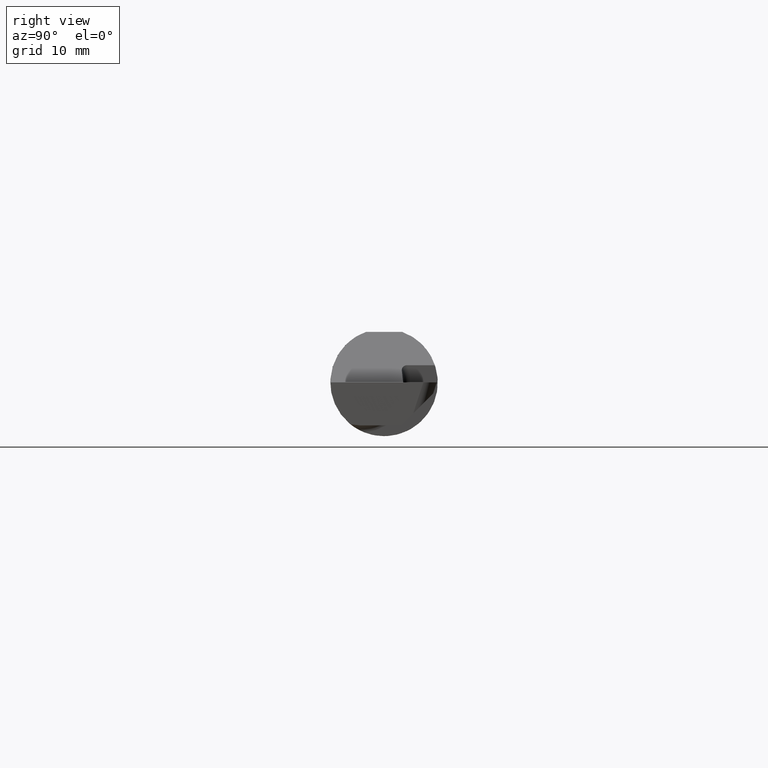
[diagram: clean part render]
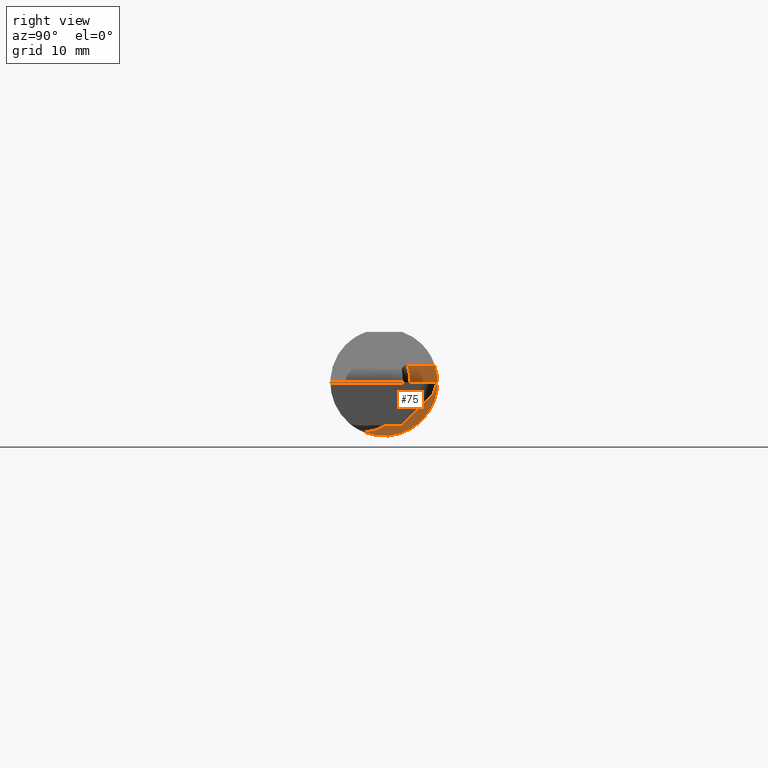
[diagram: same view with one face highlighted and labeled with its STEP entity id]
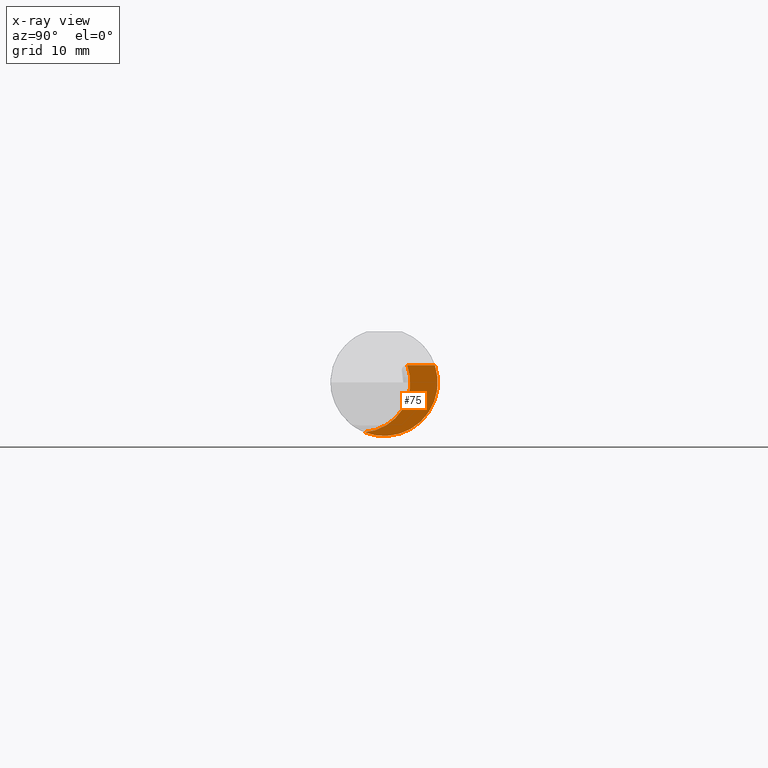
[diagram: x-ray of the same camera — body ghosted, the highlighted face saturated]
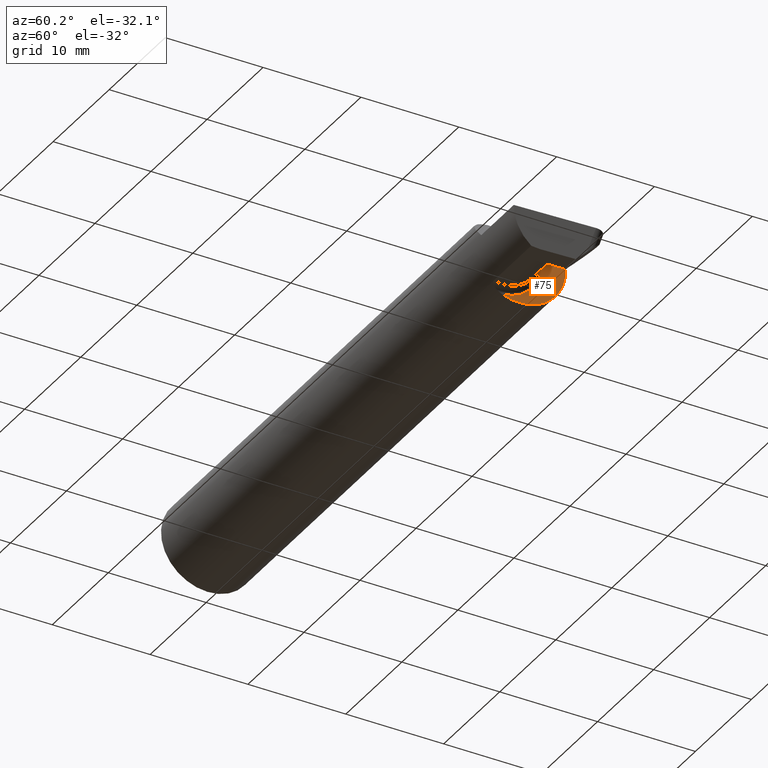
[diagram: same view with one face highlighted and labeled with its STEP entity id]
A machine part, right view. The second image highlights one B-rep face of the part: STEP entity #75.
The next image is the same camera in x-ray: the body ghosted, the highlighted face saturated — about 0% of this face is hidden behind the body in this view.
A second angle (auxiliary view) of the same face is appended — the face is thin or edge-on in the first view.
In plain terms, the highlighted planar face has unit normal (1, 0, 0).
Its self-contained STEP definition (entity closure, byte-faithful):
#29 = AXIS2_PLACEMENT_3D ( 'NONE', #73, #180, #301 ) ;
#38 = DIRECTION ( 'NONE',  ( -6.448948547284692709E-16, 1.000000000000000000, 0.000000000000000000 ) ) ;
#47 = CARTESIAN_POINT ( 'NONE',  ( 2.200000000000000178, -0.06851976604679038685, -0.1743704796142199753 ) ) ;
#73 = CARTESIAN_POINT ( 'NONE',  ( 2.200000000000000178, -0.08335000000000011844, 0.000000000000000000 ) ) ;
#75 = ADVANCED_FACE ( 'NONE', ( #366 ), #466, .T. ) ;
#94 = EDGE_LOOP ( 'NONE', ( #439, #450, #112 ) ) ;
#112 = ORIENTED_EDGE ( 'NONE', *, *, #365, .T. ) ;
#114 = DIRECTION ( 'NONE',  ( 6.448948547284691722E-16, -1.000000000000000000, -6.448948547284629600E-16 ) ) ;
#120 = VERTEX_POINT ( 'NONE', #47 ) ;
#146 = CARTESIAN_POINT ( 'NONE',  ( 2.200000000000000178, 0.000000000000000000, 0.000000000000000000 ) ) ;
#180 = DIRECTION ( 'NONE',  ( -1.000000000000000000, -6.448948547284692709E-16, -0.000000000000000000 ) ) ;
#200 = EDGE_CURVE ( 'NONE', #120, #573, #374, .T. ) ;
#216 = LINE ( 'NONE', #343, #700 ) ;
#232 = EDGE_CURVE ( 'NONE', #573, #661, #216, .T. ) ;
#301 = DIRECTION ( 'NONE',  ( 0.000000000000000000, -1.000000000000000000, 0.000000000000000000 ) ) ;
#309 = CARTESIAN_POINT ( 'NONE',  ( 2.200000000000000178, 0.1873499999999999888, 0.000000000000000000 ) ) ;
#343 = CARTESIAN_POINT ( 'NONE',  ( 2.200000000000000178, -0.2500000000000001110, 0.05999999999999934552 ) ) ;
#365 = EDGE_CURVE ( 'NONE', #661, #120, #498, .T. ) ;
#366 = FACE_OUTER_BOUND ( 'NONE', #94, .T. ) ;
#371 = CARTESIAN_POINT ( 'NONE',  ( 2.200000000000000178, 0.1774824568795463631, 0.05999999999999961614 ) ) ;
#374 = CIRCLE ( 'NONE', #649, 0.1873499999999999888 ) ;
#439 = ORIENTED_EDGE ( 'NONE', *, *, #200, .T. ) ;
#450 = ORIENTED_EDGE ( 'NONE', *, *, #232, .T. ) ;
#466 = PLANE ( 'NONE',  #559 ) ;
#498 = CIRCLE ( 'NONE', #29, 0.1750000000000001277 ) ;
#530 = DIRECTION ( 'NONE',  ( 1.000000000000000000, 6.448948547284692709E-16, 0.000000000000000000 ) ) ;
#549 = DIRECTION ( 'NONE',  ( 0.000000000000000000, 1.000000000000000000, 0.000000000000000000 ) ) ;
#559 = AXIS2_PLACEMENT_3D ( 'NONE', #309, #530, #38 ) ;
#573 = VERTEX_POINT ( 'NONE', #371 ) ;
#604 = DIRECTION ( 'NONE',  ( 1.000000000000000000, 6.448948547284692709E-16, 0.000000000000000000 ) ) ;
#611 = CARTESIAN_POINT ( 'NONE',  ( 2.200000000000000178, 0.08104282222773613598, 0.05999999999999955369 ) ) ;
#649 = AXIS2_PLACEMENT_3D ( 'NONE', #146, #604, #549 ) ;
#661 = VERTEX_POINT ( 'NONE', #611 ) ;
#700 = VECTOR ( 'NONE', #114, 39.37007874015748143 ) ;